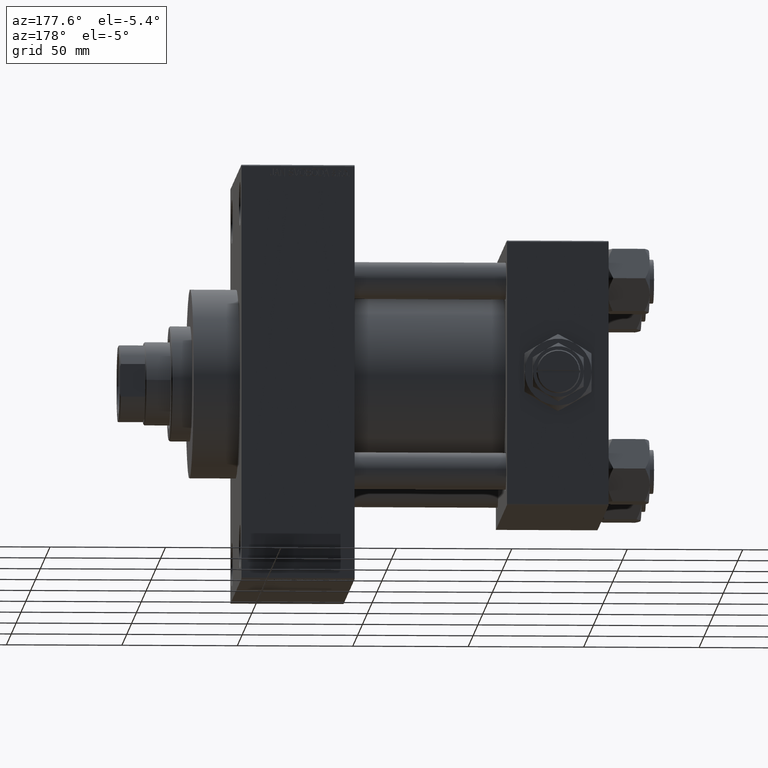
[diagram: clean part render]
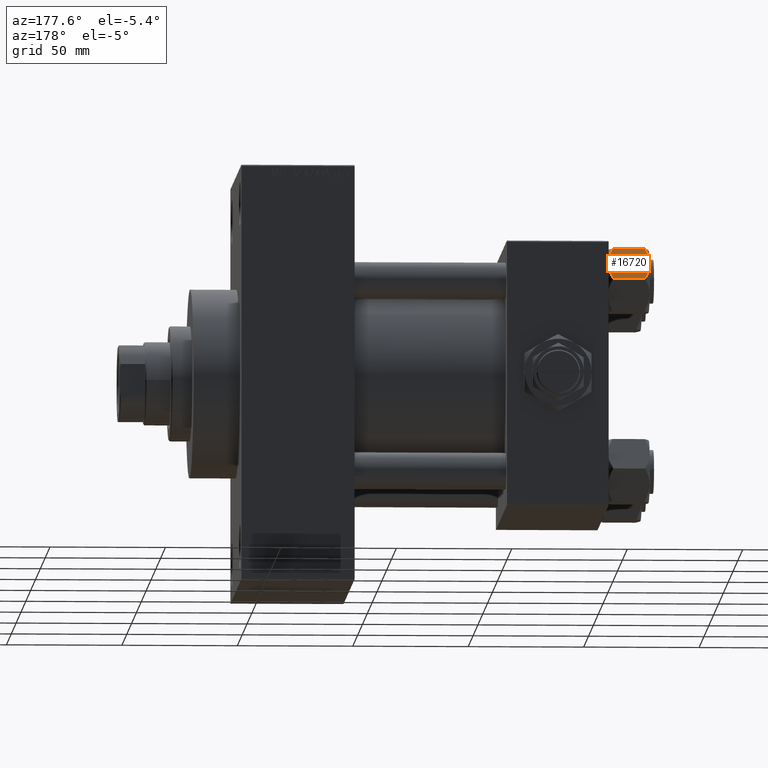
[diagram: same view with one face highlighted and labeled with its STEP entity id]
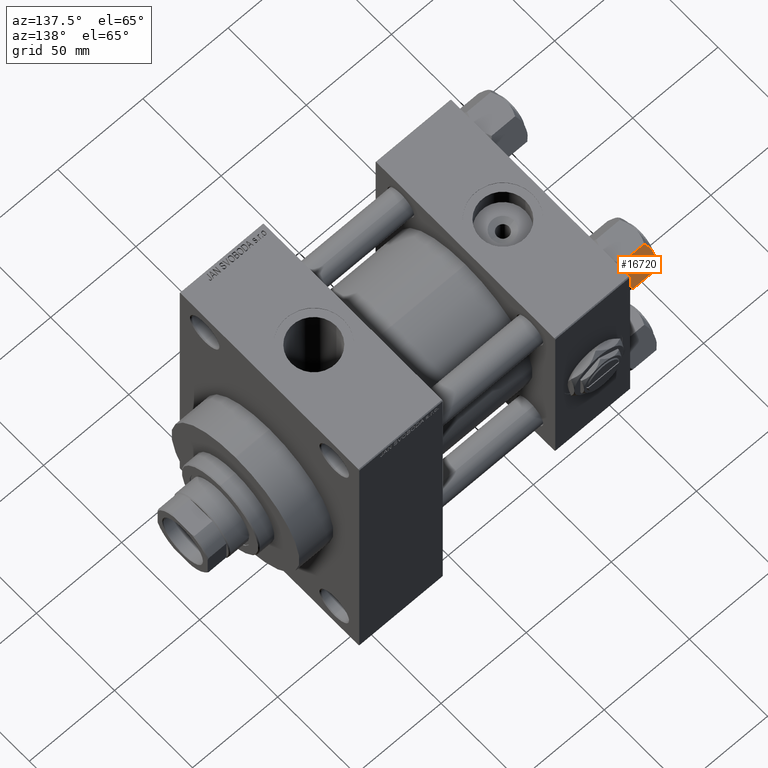
[diagram: same view with one face highlighted and labeled with its STEP entity id]
A machine part, auxiliary view. The second image highlights one B-rep face of the part: STEP entity #16720.
A second angle (auxiliary view) of the same face is appended — the face is thin or edge-on in the first view.
In plain terms, the highlighted planar face has unit normal (0, -0.866, -0.5).
Its self-contained STEP definition (entity closure, byte-faithful):
#552 = VERTEX_POINT ( 'NONE', #23161 ) ;
#1237 = VERTEX_POINT ( 'NONE', #41002 ) ;
#1253 = VECTOR ( 'NONE', #47333, 1000.000000000000114 ) ;
#1820 = ORIENTED_EDGE ( 'NONE', *, *, #38851, .F. ) ;
#2732 = CARTESIAN_POINT ( 'NONE',  ( 11.71500000000000341, -6.763658403556471299, 0.000000000000000000 ) ) ;
#3703 = CARTESIAN_POINT ( 'NONE',  ( 9.114548888011784200, -11.26777185211904353, -0.9142282604026938930 ) ) ;
#3895 = EDGE_CURVE ( 'NONE', #23842, #35370, #32817, .T. ) ;
#5343 = LINE ( 'NONE', #27372, #34021 ) ;
#5994 = CARTESIAN_POINT ( 'NONE',  ( 14.30591678195076355, -2.276058899034900662, -0.9473872146228133895 ) ) ;
#6005 = DIRECTION ( 'NONE',  ( -0.5000000000000002220, -0.8660254037844384856, 0.000000000000000000 ) ) ;
#6031 = CARTESIAN_POINT ( 'NONE',  ( 11.71500000000000341, -6.763658403556471299, 0.000000000000000000 ) ) ;
#6299 = CARTESIAN_POINT ( 'NONE',  ( 11.71500000000000341, -6.763658403556471299, -18.00000000000000000 ) ) ;
#6747 = CARTESIAN_POINT ( 'NONE',  ( 11.71500000000000341, -6.763658403556471299, 0.000000000000000000 ) ) ;
#8590 = EDGE_CURVE ( 'NONE', #33156, #11692, #19054, .T. ) ;
#9392 = EDGE_CURVE ( 'NONE', #35370, #10100, #5343, .T. ) ;
#9895 = ORIENTED_EDGE ( 'NONE', *, *, #8590, .F. ) ;
#10100 = VERTEX_POINT ( 'NONE', #35699 ) ;
#10222 = CARTESIAN_POINT ( 'NONE',  ( 11.38181071908714515, -7.340759166634874155, 7.741881137904304113E-16 ) ) ;
#10260 = CARTESIAN_POINT ( 'NONE',  ( 12.37702203890362540, -5.617002596445055396, 1.097754699641572845E-15 ) ) ;
#10303 = CARTESIAN_POINT ( 'NONE',  ( 8.506059550806615022, -12.32170630002230638, -16.56553707812499709 ) ) ;
#10666 = VERTEX_POINT ( 'NONE', #31818 ) ;
#11158 = CARTESIAN_POINT ( 'NONE',  ( 13.36540581434587516, -3.905071680002325962, -17.61639331488793303 ) ) ;
#11692 = VERTEX_POINT ( 'NONE', #35843 ) ;
#13799 = CARTESIAN_POINT ( 'NONE',  ( 7.903528262322674358, -13.36532110482643176, -16.00000000000000000 ) ) ;
#13957 = ORIENTED_EDGE ( 'NONE', *, *, #9392, .F. ) ;
#14893 = CARTESIAN_POINT ( 'NONE',  ( 14.31545111198821729, -2.259544954993898624, -17.08577173959729834 ) ) ;
#15804 = B_SPLINE_CURVE_WITH_KNOTS ( 'NONE', 3,
 ( #40917, #49161, #14893, #11158, #45652, #22639, #41653, #18157 ),
 .UNSPECIFIED., .F., .F.,
 ( 4, 2, 2, 4 ),
 ( 4.472842641901889415E-07, 0.003945636373369311792, 0.005918230917921871344, 0.007890825462474430896 ),
 .UNSPECIFIED. ) ;
#16671 = EDGE_CURVE ( 'NONE', #11692, #32735, #20527, .T. ) ;
#16720 = ADVANCED_FACE ( 'NONE', ( #22018 ), #33273, .F. ) ;
#17352 = VECTOR ( 'NONE', #23078, 1000.000000000000114 ) ;
#18093 = ORIENTED_EDGE ( 'NONE', *, *, #22681, .F. ) ;
#18157 = CARTESIAN_POINT ( 'NONE',  ( 11.71500000000000341, -6.763658403556471299, -18.00000000000000000 ) ) ;
#18493 = CARTESIAN_POINT ( 'NONE',  ( 7.810000000000002274, -13.52731680711293372, -16.00000000000000000 ) ) ;
#18813 = CARTESIAN_POINT ( 'NONE',  ( 15.62000000000000455, -1.379485931020374819E-15, -16.00000000000000000 ) ) ;
#18937 = CARTESIAN_POINT ( 'NONE',  ( 10.06459418565412456, -9.622245127110611307, -0.3836066851120584209 ) ) ;
#19054 = LINE ( 'NONE', #33824, #28410 ) ;
#19800 = ORIENTED_EDGE ( 'NONE', *, *, #20731, .T. ) ;
#20527 = LINE ( 'NONE', #45278, #28584 ) ;
#20582 = CARTESIAN_POINT ( 'NONE',  ( 15.62000000000000455, -1.379485931020374819E-15, -16.00000000000000000 ) ) ;
#20731 = EDGE_CURVE ( 'NONE', #1237, #10100, #36642, .T. ) ;
#21423 = ORIENTED_EDGE ( 'NONE', *, *, #38007, .F. ) ;
#22018 = FACE_OUTER_BOUND ( 'NONE', #24861, .T. ) ;
#22295 = VERTEX_POINT ( 'NONE', #40727 ) ;
#22639 = CARTESIAN_POINT ( 'NONE',  ( 12.38621571200405569, -5.601078687526932498, -17.94910618364698252 ) ) ;
#22681 = EDGE_CURVE ( 'NONE', #10666, #22295, #15804, .T. ) ;
#22766 = ORIENTED_EDGE ( 'NONE', *, *, #41315, .F. ) ;
#23078 = DIRECTION ( 'NONE',  ( -0.5000000000000002220, -0.8660254037844384856, 0.000000000000000000 ) ) ;
#23161 = CARTESIAN_POINT ( 'NONE',  ( 7.903528262322674358, -13.36532110482643176, -16.00000000000000000 ) ) ;
#23842 = VERTEX_POINT ( 'NONE', #6031 ) ;
#24861 = EDGE_LOOP ( 'NONE', ( #21423, #19800, #13957, #39310, #1820, #39415, #9895, #22766, #49356, #18093 ) ) ;
#24888 = CARTESIAN_POINT ( 'NONE',  ( 15.62000000000000455, -1.379485931020374819E-15, -18.00000000000000000 ) ) ;
#25762 = CARTESIAN_POINT ( 'NONE',  ( 15.52647173767732980, -0.1619957022865074481, -2.000000000000000000 ) ) ;
#26209 = AXIS2_PLACEMENT_3D ( 'NONE', #48542, #29013, #6005 ) ;
#27350 = LINE ( 'NONE', #20582, #1253 ) ;
#27372 = CARTESIAN_POINT ( 'NONE',  ( 15.62000000000000455, -1.379485931020374819E-15, -1.999999999999998224 ) ) ;
#28410 = VECTOR ( 'NONE', #38300, 1000.000000000000000 ) ;
#28584 = VECTOR ( 'NONE', #48288, 1000.000000000000114 ) ;
#29013 = DIRECTION ( 'NONE',  ( -0.8660254037844385966, 0.5000000000000003331, 0.000000000000000000 ) ) ;
#29213 = CARTESIAN_POINT ( 'NONE',  ( 11.04378428799594936, -7.926238119586006547, -0.05089381635301404999 ) ) ;
#29248 = CARTESIAN_POINT ( 'NONE',  ( 14.92394044919338292, -1.205610507090636219, -1.434462921875003349 ) ) ;
#31818 = CARTESIAN_POINT ( 'NONE',  ( 15.52647173767732980, -0.1619957022865074481, -16.00000000000000000 ) ) ;
#32735 = VERTEX_POINT ( 'NONE', #40962 ) ;
#32817 = B_SPLINE_CURVE_WITH_KNOTS ( 'NONE', 3,
 ( #6747, #10260, #45017, #44774, #5994, #29248, #33752, #25762 ),
 .UNSPECIFIED., .F., .F.,
 ( 4, 2, 2, 4 ),
 ( 0.007890825462474425692, 0.01181022244528553977, 0.01376992093669109768, 0.01572961942809665559 ),
 .UNSPECIFIED. ) ;
#33156 = VERTEX_POINT ( 'NONE', #18493 ) ;
#33273 = PLANE ( 'NONE',  #26209 ) ;
#33307 = CARTESIAN_POINT ( 'NONE',  ( 9.124083218049241495, -11.25125790807804016, -17.05261278537718539 ) ) ;
#33752 = CARTESIAN_POINT ( 'NONE',  ( 15.22736220980736022, -0.6800686015852294153, -1.706311779141445495 ) ) ;
#33824 = CARTESIAN_POINT ( 'NONE',  ( 7.810000000000002274, -13.52731680711293372, -18.00000000000000000 ) ) ;
#33957 = CARTESIAN_POINT ( 'NONE',  ( 8.502393313253756801, -12.32805640973649197, -1.411989271640069044 ) ) ;
#34021 = VECTOR ( 'NONE', #42634, 1000.000000000000114 ) ;
#35370 = VERTEX_POINT ( 'NONE', #44201 ) ;
#35638 = DIRECTION ( 'NONE',  ( -0.000000000000000000, -0.000000000000000000, 1.000000000000000000 ) ) ;
#35699 = CARTESIAN_POINT ( 'NONE',  ( 15.62000000000000455, -1.379485931020374819E-15, -1.999999999999998224 ) ) ;
#35843 = CARTESIAN_POINT ( 'NONE',  ( 7.810000000000002274, -13.52731680711293372, -1.999999999999998224 ) ) ;
#36642 = LINE ( 'NONE', #24888, #46324 ) ;
#37946 = CARTESIAN_POINT ( 'NONE',  ( 7.903528262322674358, -13.36532110482643176, -2.000000000000000000 ) ) ;
#38000 = B_SPLINE_CURVE_WITH_KNOTS ( 'NONE', 3,
 ( #37946, #33957, #3703, #18937, #49219, #29213, #10222, #2732 ),
 .UNSPECIFIED., .F., .F.,
 ( 4, 2, 2, 4 ),
 ( 4.472842641876105202E-07, 0.003945636373369308322, 0.005918230917921867007, 0.007890825462474425692 ),
 .UNSPECIFIED. ) ;
#38007 = EDGE_CURVE ( 'NONE', #1237, #10666, #27350, .T. ) ;
#38300 = DIRECTION ( 'NONE',  ( -0.000000000000000000, -0.000000000000000000, 1.000000000000000000 ) ) ;
#38851 = EDGE_CURVE ( 'NONE', #32735, #23842, #38000, .T. ) ;
#39310 = ORIENTED_EDGE ( 'NONE', *, *, #3895, .F. ) ;
#39415 = ORIENTED_EDGE ( 'NONE', *, *, #16671, .F. ) ;
#40574 = EDGE_CURVE ( 'NONE', #22295, #552, #49314, .T. ) ;
#40727 = CARTESIAN_POINT ( 'NONE',  ( 11.71500000000000341, -6.763658403556471299, -18.00000000000000000 ) ) ;
#40810 = CARTESIAN_POINT ( 'NONE',  ( 10.40215497533437450, -9.037572688741349225, -17.80281335400754372 ) ) ;
#40917 = CARTESIAN_POINT ( 'NONE',  ( 15.52647173767732980, -0.1619957022865074481, -16.00000000000000000 ) ) ;
#40962 = CARTESIAN_POINT ( 'NONE',  ( 7.903528262322674358, -13.36532110482643176, -2.000000000000000000 ) ) ;
#41002 = CARTESIAN_POINT ( 'NONE',  ( 15.62000000000000455, -1.379485931020374819E-15, -16.00000000000000000 ) ) ;
#41315 = EDGE_CURVE ( 'NONE', #552, #33156, #42075, .T. ) ;
#41653 = CARTESIAN_POINT ( 'NONE',  ( 12.04818928091285279, -6.186557640478066666, -17.99999999999999645 ) ) ;
#42075 = LINE ( 'NONE', #18813, #17352 ) ;
#42634 = DIRECTION ( 'NONE',  ( 0.5000000000000002220, 0.8660254037844384856, -0.000000000000000000 ) ) ;
#44201 = CARTESIAN_POINT ( 'NONE',  ( 15.52647173767732980, -0.1619957022865074481, -2.000000000000000000 ) ) ;
#44565 = CARTESIAN_POINT ( 'NONE',  ( 9.439480280627259745, -10.70497417113492666, -17.26828031537187869 ) ) ;
#44774 = CARTESIAN_POINT ( 'NONE',  ( 13.99051971937274352, -2.822342635978011938, -0.7317196846281139866 ) ) ;
#45017 = CARTESIAN_POINT ( 'NONE',  ( 13.02784502466562699, -4.489744118371590709, -0.1971866459924545845 ) ) ;
#45060 = CARTESIAN_POINT ( 'NONE',  ( 11.05297796109637964, -7.910314210667883650, -18.00000000000000000 ) ) ;
#45278 = CARTESIAN_POINT ( 'NONE',  ( 15.62000000000000455, -1.379485931020374819E-15, -1.999999999999998224 ) ) ;
#45652 = CARTESIAN_POINT ( 'NONE',  ( 13.04337073483127973, -4.462852799541088267, -17.75691532989870325 ) ) ;
#46324 = VECTOR ( 'NONE', #35638, 1000.000000000000000 ) ;
#47333 = DIRECTION ( 'NONE',  ( -0.5000000000000002220, -0.8660254037844384856, 0.000000000000000000 ) ) ;
#48066 = CARTESIAN_POINT ( 'NONE',  ( 8.202637790192644829, -12.84724820552770908, -16.29368822085855228 ) ) ;
#48288 = DIRECTION ( 'NONE',  ( 0.5000000000000002220, 0.8660254037844384856, -0.000000000000000000 ) ) ;
#48542 = CARTESIAN_POINT ( 'NONE',  ( 15.62000000000000455, -1.379485931020374819E-15, -18.00000000000000000 ) ) ;
#49161 = CARTESIAN_POINT ( 'NONE',  ( 14.92760668674625535, -1.199260397376455067, -16.58801072835992585 ) ) ;
#49219 = CARTESIAN_POINT ( 'NONE',  ( 10.38662926516871998, -9.064464007571853443, -0.2430846701012968625 ) ) ;
#49314 = B_SPLINE_CURVE_WITH_KNOTS ( 'NONE', 3,
 ( #6299, #45060, #40810, #44565, #33307, #10303, #48066, #13799 ),
 .UNSPECIFIED., .F., .F.,
 ( 4, 2, 2, 4 ),
 ( 0.007890825462474430896, 0.01181022244528554324, 0.01376992093669110115, 0.01572961942809665906 ),
 .UNSPECIFIED. ) ;
#49356 = ORIENTED_EDGE ( 'NONE', *, *, #40574, .F. ) ;